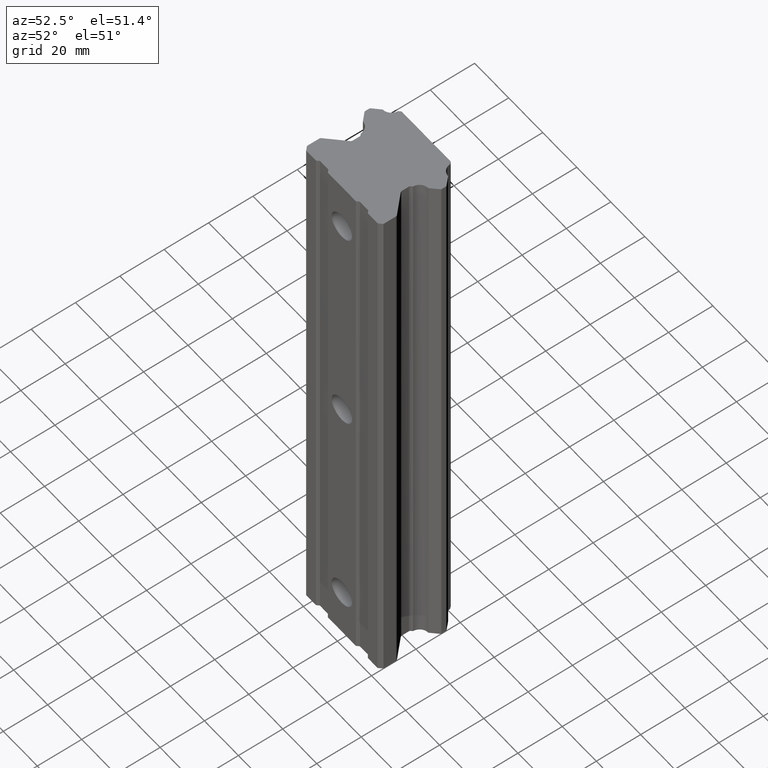
[diagram: clean part render]
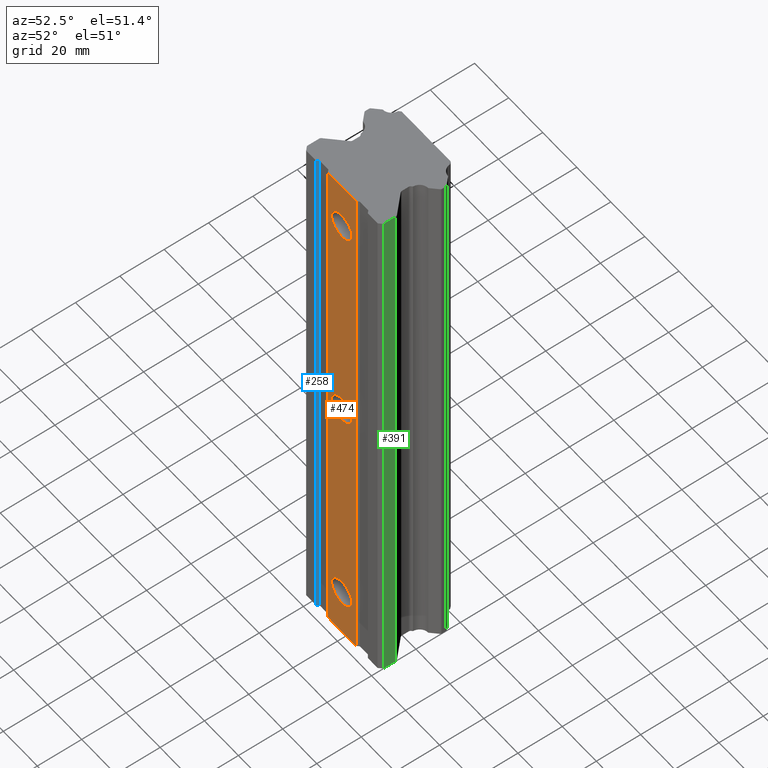
[diagram: same view with three faces highlighted in distinct colors, each labeled with its STEP entity id]
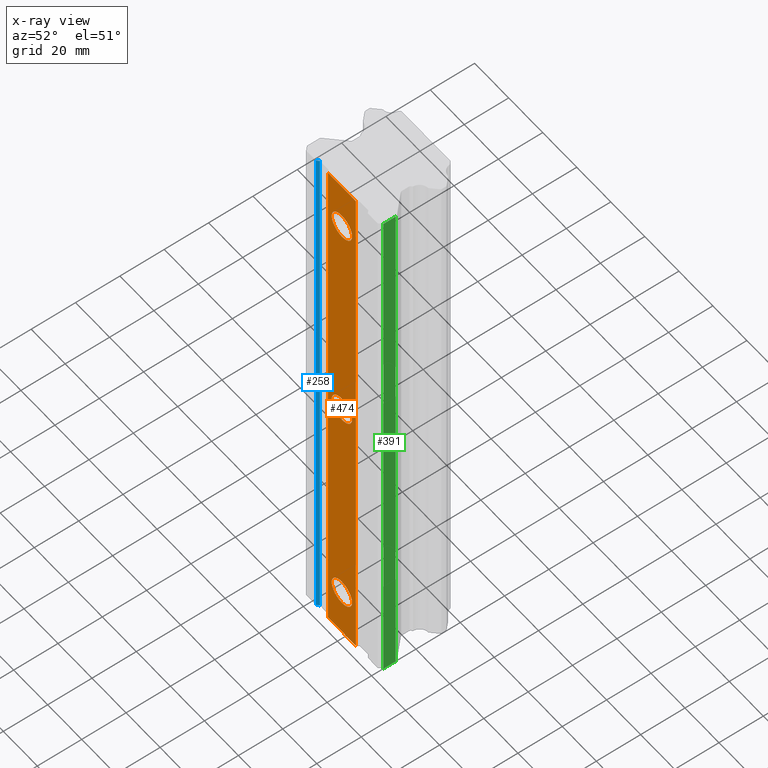
[diagram: x-ray of the same camera — body ghosted, the three highlighted faces saturated]
A machine part, auxiliary view with three faces highlighted in distinct colors.
The next image is the same camera in x-ray (body ghosted, the three faces saturated) — at least one of them is partly hidden behind the body in this view.
Their STEP definitions:

[orange] entity #474 — the highlighted planar face has unit normal (0, 1, 0).
#47 = VERTEX_POINT ( 'NONE', #728 ) ;
#49 = EDGE_CURVE ( 'NONE', #47, #50, #727, .T. ) ;
#50 = VERTEX_POINT ( 'NONE', #722 ) ;
#61 = VERTEX_POINT ( 'NONE', #539 ) ;
#128 = VERTEX_POINT ( 'NONE', #839 ) ;
#173 = EDGE_CURVE ( 'NONE', #61, #174, #960, .T. ) ;
#174 = VERTEX_POINT ( 'NONE', #1073 ) ;
#211 = EDGE_CURVE ( 'NONE', #128, #212, #1100, .T. ) ;
#212 = VERTEX_POINT ( 'NONE', #1096 ) ;
#215 = EDGE_CURVE ( 'NONE', #50, #47, #1094, .T. ) ;
#221 = EDGE_CURVE ( 'NONE', #222, #223, #1029, .T. ) ;
#222 = VERTEX_POINT ( 'NONE', #1085 ) ;
#223 = VERTEX_POINT ( 'NONE', #1084 ) ;
#226 = EDGE_CURVE ( 'NONE', #174, #61, #1083, .T. ) ;
#229 = EDGE_CURVE ( 'NONE', #276, #273, #986, .T. ) ;
#273 = VERTEX_POINT ( 'NONE', #1107 ) ;
#275 = EDGE_CURVE ( 'NONE', #273, #276, #1106, .T. ) ;
#276 = VERTEX_POINT ( 'NONE', #1222 ) ;
#400 = ORIENTED_EDGE ( 'NONE', *, *, #221, .F. ) ;
#411 = ORIENTED_EDGE ( 'NONE', *, *, #500, .T. ) ;
#446 = ORIENTED_EDGE ( 'NONE', *, *, #173, .F. ) ;
#447 = EDGE_LOOP ( 'NONE', ( #448, #450, #411, #400 ) ) ;
#448 = ORIENTED_EDGE ( 'NONE', *, *, #449, .F. ) ;
#449 = EDGE_CURVE ( 'NONE', #212, #222, #1605, .T. ) ;
#450 = ORIENTED_EDGE ( 'NONE', *, *, #211, .F. ) ;
#455 = ORIENTED_EDGE ( 'NONE', *, *, #49, .F. ) ;
#456 = EDGE_LOOP ( 'NONE', ( #457, #446 ) ) ;
#457 = ORIENTED_EDGE ( 'NONE', *, *, #226, .F. ) ;
#474 = ADVANCED_FACE ( 'NONE', ( #1474, #1473, #1472, #1471 ), #1470, .F. ) ;
#475 = EDGE_LOOP ( 'NONE', ( #476, #477 ) ) ;
#476 = ORIENTED_EDGE ( 'NONE', *, *, #229, .F. ) ;
#477 = ORIENTED_EDGE ( 'NONE', *, *, #275, .F. ) ;
#478 = EDGE_LOOP ( 'NONE', ( #479, #455 ) ) ;
#479 = ORIENTED_EDGE ( 'NONE', *, *, #215, .F. ) ;
#500 = EDGE_CURVE ( 'NONE', #128, #223, #1410, .T. ) ;
#539 = CARTESIAN_POINT ( 'NONE',  ( 7.347880794884112800E-016, -38.00000000000000000, -98.99999999999998600 ) ) ;
#722 = CARTESIAN_POINT ( 'NONE',  ( 0.0000000000000000000, -38.00000000000000000, -6.000000000000000000 ) ) ;
#723 = DIRECTION ( 'NONE',  ( 0.0000000000000000000, 0.0000000000000000000, -1.000000000000000000 ) ) ;
#724 = DIRECTION ( 'NONE',  ( 0.0000000000000000000, -1.000000000000000000, 0.0000000000000000000 ) ) ;
#725 = CARTESIAN_POINT ( 'NONE',  ( 0.0000000000000000000, -38.00000000000000000, 0.0000000000000000000 ) ) ;
#726 = AXIS2_PLACEMENT_3D ( 'NONE', #725, #724, #723 ) ;
#727 = CIRCLE ( 'NONE', #726, 6.000000000000000000 ) ;
#728 = CARTESIAN_POINT ( 'NONE',  ( 7.347880794884119700E-016, -38.00000000000000000, 6.000000000000000000 ) ) ;
#839 = CARTESIAN_POINT ( 'NONE',  ( -8.250373630971942900, -37.99999999999994300, -127.5000000000000000 ) ) ;
#957 = DIRECTION ( 'NONE',  ( 0.0000000000000000000, 0.0000000000000000000, -1.000000000000000000 ) ) ;
#958 = DIRECTION ( 'NONE',  ( 0.0000000000000000000, -1.000000000000000000, 0.0000000000000000000 ) ) ;
#959 = AXIS2_PLACEMENT_3D ( 'NONE', #1055, #958, #957 ) ;
#960 = CIRCLE ( 'NONE', #959, 6.000000000000005300 ) ;
#982 = DIRECTION ( 'NONE',  ( 0.0000000000000000000, 0.0000000000000000000, -1.000000000000000000 ) ) ;
#983 = DIRECTION ( 'NONE',  ( 0.0000000000000000000, -1.000000000000000000, 0.0000000000000000000 ) ) ;
#984 = CARTESIAN_POINT ( 'NONE',  ( 0.0000000000000000000, -38.00000000000000000, 105.0000000000000000 ) ) ;
#985 = AXIS2_PLACEMENT_3D ( 'NONE', #984, #983, #982 ) ;
#986 = CIRCLE ( 'NONE', #985, 6.000000000000005300 ) ;
#1029 = LINE ( 'NONE', #1088, #1087 ) ;
#1055 = CARTESIAN_POINT ( 'NONE',  ( 0.0000000000000000000, -38.00000000000000000, -105.0000000000000000 ) ) ;
#1073 = CARTESIAN_POINT ( 'NONE',  ( 0.0000000000000000000, -38.00000000000000000, -111.0000000000000000 ) ) ;
#1079 = DIRECTION ( 'NONE',  ( 0.0000000000000000000, 0.0000000000000000000, -1.000000000000000000 ) ) ;
#1080 = DIRECTION ( 'NONE',  ( 0.0000000000000000000, -1.000000000000000000, 0.0000000000000000000 ) ) ;
#1081 = CARTESIAN_POINT ( 'NONE',  ( 0.0000000000000000000, -38.00000000000000000, -105.0000000000000000 ) ) ;
#1082 = AXIS2_PLACEMENT_3D ( 'NONE', #1081, #1080, #1079 ) ;
#1083 = CIRCLE ( 'NONE', #1082, 6.000000000000005300 ) ;
#1084 = CARTESIAN_POINT ( 'NONE',  ( 8.249622015429004300, -38.00000000000000000, -127.5000000000000000 ) ) ;
#1085 = CARTESIAN_POINT ( 'NONE',  ( 8.249622015429004300, -38.00000000000000000, 127.5000000000000000 ) ) ;
#1086 = DIRECTION ( 'NONE',  ( 0.0000000000000000000, 0.0000000000000000000, -1.000000000000000000 ) ) ;
#1087 = VECTOR ( 'NONE', #1086, 1000.000000000000000 ) ;
#1088 = CARTESIAN_POINT ( 'NONE',  ( 8.249622015429002500, -38.00000000000000000, 0.0000000000000000000 ) ) ;
#1090 = DIRECTION ( 'NONE',  ( 0.0000000000000000000, 0.0000000000000000000, -1.000000000000000000 ) ) ;
#1091 = DIRECTION ( 'NONE',  ( 0.0000000000000000000, -1.000000000000000000, 0.0000000000000000000 ) ) ;
#1092 = CARTESIAN_POINT ( 'NONE',  ( 0.0000000000000000000, -38.00000000000000000, 0.0000000000000000000 ) ) ;
#1093 = AXIS2_PLACEMENT_3D ( 'NONE', #1092, #1091, #1090 ) ;
#1094 = CIRCLE ( 'NONE', #1093, 6.000000000000000000 ) ;
#1096 = CARTESIAN_POINT ( 'NONE',  ( -8.250373630971942900, -37.99999999999994300, 127.5000000000000600 ) ) ;
#1097 = DIRECTION ( 'NONE',  ( 0.0000000000000000000, 0.0000000000000000000, 1.000000000000000000 ) ) ;
#1098 = VECTOR ( 'NONE', #1097, 1000.000000000000000 ) ;
#1099 = CARTESIAN_POINT ( 'NONE',  ( -8.250373630971999700, -38.00000000000000000, 0.0000000000000000000 ) ) ;
#1100 = LINE ( 'NONE', #1099, #1098 ) ;
#1103 = DIRECTION ( 'NONE',  ( 0.0000000000000000000, -1.000000000000000000, 0.0000000000000000000 ) ) ;
#1104 = CARTESIAN_POINT ( 'NONE',  ( 0.0000000000000000000, -38.00000000000000000, 105.0000000000000000 ) ) ;
#1105 = AXIS2_PLACEMENT_3D ( 'NONE', #1104, #1103, #1223 ) ;
#1106 = CIRCLE ( 'NONE', #1105, 6.000000000000005300 ) ;
#1107 = CARTESIAN_POINT ( 'NONE',  ( 7.347880794884112800E-016, -38.00000000000000000, 111.0000000000000000 ) ) ;
#1222 = CARTESIAN_POINT ( 'NONE',  ( 0.0000000000000000000, -38.00000000000000000, 98.99999999999998600 ) ) ;
#1223 = DIRECTION ( 'NONE',  ( 0.0000000000000000000, 0.0000000000000000000, -1.000000000000000000 ) ) ;
#1407 = DIRECTION ( 'NONE',  ( 1.000000000000000000, 0.0000000000000000000, 0.0000000000000000000 ) ) ;
#1408 = VECTOR ( 'NONE', #1407, 1000.000000000000000 ) ;
#1409 = CARTESIAN_POINT ( 'NONE',  ( 0.0000000000000000000, -38.00000000000000000, -127.5000000000000000 ) ) ;
#1410 = LINE ( 'NONE', #1409, #1408 ) ;
#1466 = DIRECTION ( 'NONE',  ( 0.0000000000000000000, 0.0000000000000000000, 1.000000000000000000 ) ) ;
#1467 = DIRECTION ( 'NONE',  ( 0.0000000000000000000, 1.000000000000000000, 0.0000000000000000000 ) ) ;
#1468 = CARTESIAN_POINT ( 'NONE',  ( -6.711295677609000600E-014, -38.00000000000000000, 0.0000000000000000000 ) ) ;
#1469 = AXIS2_PLACEMENT_3D ( 'NONE', #1468, #1467, #1466 ) ;
#1470 = PLANE ( 'NONE',  #1469 ) ;
#1471 = FACE_OUTER_BOUND ( 'NONE', #447, .T. ) ;
#1472 = FACE_BOUND ( 'NONE', #456, .T. ) ;
#1473 = FACE_BOUND ( 'NONE', #478, .T. ) ;
#1474 = FACE_BOUND ( 'NONE', #475, .T. ) ;
#1602 = DIRECTION ( 'NONE',  ( 1.000000000000000000, 0.0000000000000000000, 0.0000000000000000000 ) ) ;
#1603 = VECTOR ( 'NONE', #1602, 1000.000000000000000 ) ;
#1604 = CARTESIAN_POINT ( 'NONE',  ( 0.0000000000000000000, -38.00000000000000000, 127.5000000000000000 ) ) ;
#1605 = LINE ( 'NONE', #1604, #1603 ) ;

[blue] entity #258 — the highlighted planar face has unit normal (0.7071, -0.7071, 0).
#209 = VERTEX_POINT ( 'NONE', #1002 ) ;
#244 = EDGE_LOOP ( 'NONE', ( #259, #262, #246, #255 ) ) ;
#245 = EDGE_CURVE ( 'NONE', #265, #263, #1227, .T. ) ;
#246 = ORIENTED_EDGE ( 'NONE', *, *, #247, .F. ) ;
#247 = EDGE_CURVE ( 'NONE', #260, #263, #1132, .T. ) ;
#255 = ORIENTED_EDGE ( 'NONE', *, *, #256, .T. ) ;
#256 = EDGE_CURVE ( 'NONE', #260, #209, #1142, .T. ) ;
#258 = ADVANCED_FACE ( 'NONE', ( #1136 ), #1246, .T. ) ;
#259 = ORIENTED_EDGE ( 'NONE', *, *, #264, .F. ) ;
#260 = VERTEX_POINT ( 'NONE', #1241 ) ;
#262 = ORIENTED_EDGE ( 'NONE', *, *, #245, .T. ) ;
#263 = VERTEX_POINT ( 'NONE', #1283 ) ;
#264 = EDGE_CURVE ( 'NONE', #265, #209, #1282, .T. ) ;
#265 = VERTEX_POINT ( 'NONE', #1278 ) ;
#1002 = CARTESIAN_POINT ( 'NONE',  ( -15.25037431593999800, -38.00000000000000000, 127.5000000000000000 ) ) ;
#1129 = DIRECTION ( 'NONE',  ( 0.0000000000000000000, 0.0000000000000000000, -1.000000000000000000 ) ) ;
#1130 = VECTOR ( 'NONE', #1129, 1000.000000000000000 ) ;
#1131 = CARTESIAN_POINT ( 'NONE',  ( -14.25037464222000100, -37.00000000000000000, -127.5000000000000000 ) ) ;
#1132 = LINE ( 'NONE', #1131, #1130 ) ;
#1136 = FACE_OUTER_BOUND ( 'NONE', #244, .T. ) ;
#1139 = DIRECTION ( 'NONE',  ( -0.7071066029755750400, -0.7071069593974750300, 0.0000000000000000000 ) ) ;
#1140 = VECTOR ( 'NONE', #1139, 1000.000000000000000 ) ;
#1141 = CARTESIAN_POINT ( 'NONE',  ( -15.25037431594000000, -38.00000000000000000, 127.5000000000000000 ) ) ;
#1142 = LINE ( 'NONE', #1141, #1140 ) ;
#1224 = DIRECTION ( 'NONE',  ( 0.7071066029755750400, 0.7071069593974750300, 0.0000000000000000000 ) ) ;
#1225 = VECTOR ( 'NONE', #1224, 1000.000000000000000 ) ;
#1226 = CARTESIAN_POINT ( 'NONE',  ( -15.25037431594000000, -38.00000000000000000, -127.5000000000000000 ) ) ;
#1227 = LINE ( 'NONE', #1226, #1225 ) ;
#1241 = CARTESIAN_POINT ( 'NONE',  ( -14.25037468277666400, -36.99999994778085700, 127.5000000000000000 ) ) ;
#1242 = DIRECTION ( 'NONE',  ( 0.7071066029755750400, 0.7071069593974750300, 0.0000000000000000000 ) ) ;
#1243 = DIRECTION ( 'NONE',  ( 0.7071069593974750300, -0.7071066029755750400, 0.0000000000000000000 ) ) ;
#1244 = CARTESIAN_POINT ( 'NONE',  ( -15.25037431594000000, -38.00000000000000000, -127.5000000000000000 ) ) ;
#1245 = AXIS2_PLACEMENT_3D ( 'NONE', #1244, #1243, #1242 ) ;
#1246 = PLANE ( 'NONE',  #1245 ) ;
#1278 = CARTESIAN_POINT ( 'NONE',  ( -15.25037431593999800, -38.00000000000000000, -127.5000000000000000 ) ) ;
#1279 = DIRECTION ( 'NONE',  ( 0.0000000000000000000, 0.0000000000000000000, 1.000000000000000000 ) ) ;
#1280 = VECTOR ( 'NONE', #1279, 1000.000000000000000 ) ;
#1281 = CARTESIAN_POINT ( 'NONE',  ( -15.25037431594000000, -38.00000000000000000, -127.5000000000000000 ) ) ;
#1282 = LINE ( 'NONE', #1281, #1280 ) ;
#1283 = CARTESIAN_POINT ( 'NONE',  ( -14.25037468277666400, -36.99999994778085700, -127.5000000000000000 ) ) ;

[green] entity #391 — the highlighted planar face has unit normal (1, 0, 0).
#336 = EDGE_CURVE ( 'NONE', #337, #436, #1301, .T. ) ;
#337 = VERTEX_POINT ( 'NONE', #1297 ) ;
#354 = EDGE_CURVE ( 'NONE', #355, #375, #1325, .T. ) ;
#355 = VERTEX_POINT ( 'NONE', #1307 ) ;
#375 = VERTEX_POINT ( 'NONE', #1318 ) ;
#382 = ORIENTED_EDGE ( 'NONE', *, *, #383, .T. ) ;
#383 = EDGE_CURVE ( 'NONE', #375, #337, #1344, .T. ) ;
#384 = ORIENTED_EDGE ( 'NONE', *, *, #336, .T. ) ;
#385 = ORIENTED_EDGE ( 'NONE', *, *, #386, .F. ) ;
#386 = EDGE_CURVE ( 'NONE', #355, #436, #1340, .T. ) ;
#391 = ADVANCED_FACE ( 'NONE', ( #1351 ), #1339, .T. ) ;
#392 = ORIENTED_EDGE ( 'NONE', *, *, #354, .T. ) ;
#436 = VERTEX_POINT ( 'NONE', #1587 ) ;
#492 = EDGE_LOOP ( 'NONE', ( #392, #382, #384, #385 ) ) ;
#1297 = CARTESIAN_POINT ( 'NONE',  ( 22.50000000000000000, -30.99672967487000000, -127.5000000000000000 ) ) ;
#1298 = DIRECTION ( 'NONE',  ( 0.0000000000000000000, 0.0000000000000000000, 1.000000000000000000 ) ) ;
#1299 = VECTOR ( 'NONE', #1298, 1000.000000000000000 ) ;
#1300 = CARTESIAN_POINT ( 'NONE',  ( 22.50000000000000000, -30.99672967487000000, -127.5000000000000000 ) ) ;
#1301 = LINE ( 'NONE', #1300, #1299 ) ;
#1307 = CARTESIAN_POINT ( 'NONE',  ( 22.50000000000000000, -36.49999999999999300, 127.5000000000000000 ) ) ;
#1308 = DIRECTION ( 'NONE',  ( 0.0000000000000000000, 0.0000000000000000000, -1.000000000000000000 ) ) ;
#1318 = CARTESIAN_POINT ( 'NONE',  ( 22.50000000000000000, -36.49999999999999300, -127.5000000000000000 ) ) ;
#1323 = VECTOR ( 'NONE', #1308, 1000.000000000000000 ) ;
#1324 = CARTESIAN_POINT ( 'NONE',  ( 22.50000000000000000, -36.50000000000000000, -127.5000000000000000 ) ) ;
#1325 = LINE ( 'NONE', #1324, #1323 ) ;
#1335 = DIRECTION ( 'NONE',  ( 0.0000000000000000000, 0.0000000000000000000, -1.000000000000000000 ) ) ;
#1336 = DIRECTION ( 'NONE',  ( 1.000000000000000000, 0.0000000000000000000, 0.0000000000000000000 ) ) ;
#1337 = CARTESIAN_POINT ( 'NONE',  ( 22.50000000000000000, -36.50000000000000000, -127.5000000000000000 ) ) ;
#1338 = AXIS2_PLACEMENT_3D ( 'NONE', #1337, #1336, #1335 ) ;
#1339 = PLANE ( 'NONE',  #1338 ) ;
#1340 = LINE ( 'NONE', #1364, #1363 ) ;
#1341 = DIRECTION ( 'NONE',  ( 0.0000000000000000000, 1.000000000000000000, 0.0000000000000000000 ) ) ;
#1342 = VECTOR ( 'NONE', #1341, 1000.000000000000000 ) ;
#1343 = CARTESIAN_POINT ( 'NONE',  ( 22.50000000000000000, 0.0000000000000000000, -127.5000000000000000 ) ) ;
#1344 = LINE ( 'NONE', #1343, #1342 ) ;
#1351 = FACE_OUTER_BOUND ( 'NONE', #492, .T. ) ;
#1362 = DIRECTION ( 'NONE',  ( 0.0000000000000000000, 1.000000000000000000, 0.0000000000000000000 ) ) ;
#1363 = VECTOR ( 'NONE', #1362, 1000.000000000000000 ) ;
#1364 = CARTESIAN_POINT ( 'NONE',  ( 22.50000000000000000, 0.0000000000000000000, 127.5000000000000000 ) ) ;
#1587 = CARTESIAN_POINT ( 'NONE',  ( 22.50000000000000000, -30.99672967487000000, 127.5000000000000000 ) ) ;